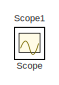
[diagram: root canvas - part 1/3, top left region]
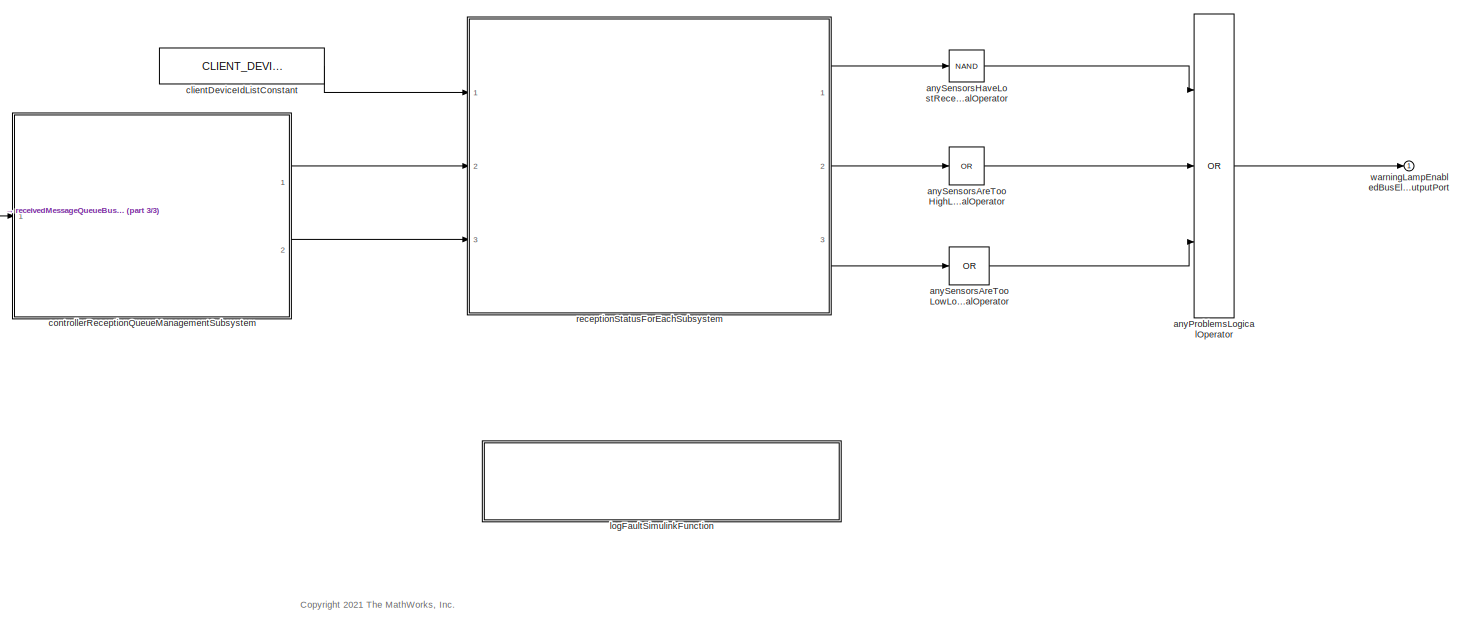
[diagram: root canvas - part 2/3, bottom center region]
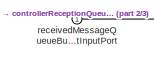
[diagram: root canvas - part 3/3, middle left region]
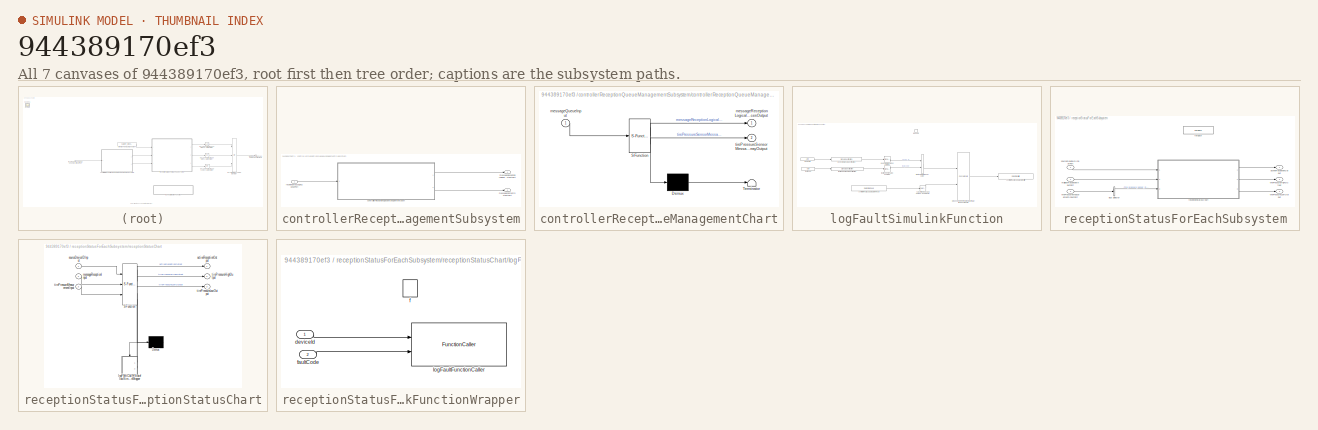
[diagram: thumbnail index - all 7 canvases of the model, root first then tree order]
MODEL slx_944389170ef3
KIND model
WORKSPACE source: MATLAB code (in-file) + mxarray member
WORKSPACE cmdLim = Simulink.Parameter
WORKSPACE code: cmdLim.Value = 15;
WORKSPACE code: cmdLim.Description = 'Limit for controlling the maximum surface command angle.';
WORKSPACE code: cmdLim.Min = 0;
WORKSPACE code: cmdLim.Max = 90;
WORKSPACE code: cmdLim.DocUnits = 'deg';
WORKSPACE dispGain = Simulink.Parameter
WORKSPACE code: dispGain.Value = 0.75;
WORKSPACE code: dispGain.Description = 'Gain applied to the displacement error.';
WORKSPACE code: dispGain.Min = 0;
WORKSPACE code: dispGain.Max = [];
WORKSPACE code: dispGain.DocUnits = 'deg/sec/deg';
WORKSPACE dispLim = Simulink.Parameter
WORKSPACE code: dispLim.Value = 30;
WORKSPACE code: dispLim.Description = 'Limit for controlling the maximum commanded angle.';
WORKSPACE code: dispLim.Min = 0;
WORKSPACE code: dispLim.Max = 180;
WORKSPACE code: dispLim.DocUnits = 'deg';
WORKSPACE intGain = Simulink.Parameter
WORKSPACE code: intGain.Value = 0.5;
WORKSPACE code: intGain.Description = 'Gain applied to the integral error.';
WORKSPACE code: intGain.Min = 0;
WORKSPACE code: intGain.Max = [];
WORKSPACE code: intGain.DocUnits = 'deg/sec/deg/sec';
WORKSPACE intLim = Simulink.Parameter
WORKSPACE code: intLim.Value = 5;
WORKSPACE code: intLim.Description = 'Limit for controlling the maximum commanded angle.';
WORKSPACE code: intLim.Min = 0;
WORKSPACE code: intLim.Max = 90;
WORKSPACE code: intLim.DocUnits = 'deg';
WORKSPACE rateGain = Simulink.Parameter
WORKSPACE code: rateGain.Value = 2;
WORKSPACE code: rateGain.Description = 'Gain applied to the rate error.';
WORKSPACE code: rateGain.Min = 0;
WORKSPACE code: rateGain.Max = [];
WORKSPACE code: rateGain.DocUnits = 'deg/deg/sec';
WORKSPACE rateLim = Simulink.Parameter
WORKSPACE code: rateLim.Value = 6;
WORKSPACE code: rateLim.Description = 'Limit for controlling the maximum commanded angle.';
WORKSPACE code: rateLim.Min = 0;
WORKSPACE code: rateLim.Max = 180;
WORKSPACE code: rateLim.DocUnits = 'deg/sec';
WORKSPACE hdgGain = Simulink.Parameter
WORKSPACE code: hdgGain.Value = 0.015;
WORKSPACE CLIENT_DEVICE_ID_LIST: Simulink.Parameter (value not decoded)
WORKSPACE CONTROLLER_SAMPLE_TIME = 0.01
WORKSPACE RECEPTION_LOSS_MESSAGE_INTERVAL = 2
WORKSPACE TIRE_PRESSURE_LOWER_THRESHOLD = 1.4
WORKSPACE TIRE_PRESSURE_UPPER_THRESHOLD = 4.6
BLOCK [Scope] Scope
  Floating = off
  IOType = viewer
  NumInputPorts = 1
  Ports = []
  ScopeSpecificationString = Simulink.scopes.TimeScopeBlockCfg('CurrentConfiguration', extmgr.ConfigurationSet(extmgr.Configuration('Core','General UI',true),extmgr.Configuration('Core','Source UI',true),extmgr.Configuration('Sources','WiredSimulink',true),extmgr.Configuration('Visuals','Time Domain',true),extmgr.Configuration('Tools','Plot Navigation',true),extmgr.Configuration('Tools','Measurements',true,'Version','2020b'))...<+19ch>
BLOCK [Scope] Scope1
  Floating = off
  IOType = viewer
  NumInputPorts = 1
  Ports = []
  ScopeSpecificationString = Simulink.scopes.TimeScopeBlockCfg('CurrentConfiguration', extmgr.ConfigurationSet(extmgr.Configuration('Core','General UI',true),extmgr.Configuration('Core','Source UI',true),extmgr.Configuration('Sources','WiredSimulink',true,'DataLoggingVariableName','ScopeData1'),extmgr.Configuration('Visuals','Time Domain',true),extmgr.Configuration('Tools','Plot Navigation',true),extmgr.Configuration('Tools',...<+58ch>
BLOCK [Logic] anyProblemsLogicalOperator
  AllPortsSameDT = off
  Inputs = 3
  Operator = OR
  OutDataTypeStr = boolean
  Ports = [3, 1]
BLOCK [Logic] anySensorsAreTooHighLogicalOperator
  AllPortsSameDT = off
  Inputs = 1
  Operator = OR
  OutDataTypeStr = boolean
  Ports = [1, 1]
BLOCK [Logic] anySensorsAreTooLowLogicalOperator
  AllPortsSameDT = off
  Inputs = 1
  Operator = OR
  OutDataTypeStr = boolean
  Ports = [1, 1]
BLOCK [Logic] anySensorsHaveLostReceptionLogicalOperator
  AllPortsSameDT = off
  Inputs = 1
  Operator = NAND
  OutDataTypeStr = boolean
  Ports = [1, 1]
BLOCK [Constant] clientDeviceIdListConstant
  OutDataTypeStr = Bus: DeviceIDBusType
  Value = CLIENT_DEVICE_ID_LIST
  VectorParams1D = off
BLOCK [SubSystem] controllerReceptionQueueManagementSubsystem
  Ports = [1, 2]
  RequestExecContextInheritance = off
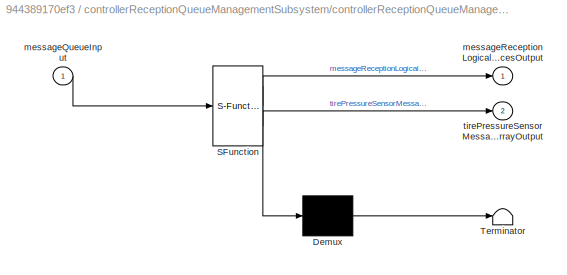
BLOCK [SubSystem] controllerReceptionQueueManagementSubsystem/controllerReceptionQueueManagementChart
  ErrorFcn = Stateflow.Translate.translate
  PermitHierarchicalResolution = ExplicitOnly
  Ports = [1, 2]
  RequestExecContextInheritance = off
  SFBlockType = Chart
  TreatAsAtomicUnit = on
BLOCK [Demux] controllerReceptionQueueManagementSubsystem/controllerReceptionQueueManagementChart/ Demux 
  Outputs = 1
  Ports = [1, 1]
BLOCK [S-Function] controllerReceptionQueueManagementSubsystem/controllerReceptionQueueManagementChart/ SFunction 
  EnableBusSupport = off
  FunctionName = sf_sfun
  Parameters = CLIENT_DEVICE_ID_LIST,DEFAULT_MEASUREMENT_MSG_BUS_TYPE,PER_STEP_MAXIMUM_MESSAGES_TO_PROCESS
  PortCounts = [1 3]
  Ports = [1, 3]
  SFcnIsStateOwnerBlock = off
  SFunctionDeploymentMode = off
  Tag = Stateflow S-Function 1
BLOCK [Terminator] controllerReceptionQueueManagementSubsystem/controllerReceptionQueueManagementChart/ Terminator 
BLOCK [Inport] controllerReceptionQueueManagementSubsystem/controllerReceptionQueueManagementChart/messageQueueInput
BLOCK [Outport] controllerReceptionQueueManagementSubsystem/controllerReceptionQueueManagementChart/messageReceptionLogicalIndicesOutput
BLOCK [Outport] controllerReceptionQueueManagementSubsystem/controllerReceptionQueueManagementChart/tirePressureSensorMessageArrayOutput
  Port = 2
BLOCK [Outport] controllerReceptionQueueManagementSubsystem/messageContentOutputPort
  Port = 2
BLOCK [Outport] controllerReceptionQueueManagementSubsystem/messageReceptionLogicalIndicesOutputPort
BLOCK [Inport] controllerReceptionQueueManagementSubsystem/receivedMessageQueuePort
BLOCK [SubSystem] logFaultSimulinkFunction
  Ports = [0, 0, 0, 1]
  RequestExecContextInheritance = off
  TreatAsAtomicUnit = on
BLOCK [DataStoreRead] logFaultSimulinkFunction/controllerFaultLogDataStoreRead
  DataStoreName = controller_fault_log
  IndexOptions = Index vector (dialog)
  Indices = 1
  OutputSizes = 1
  Ports = [0, 1]
BLOCK [DataStoreWrite] logFaultSimulinkFunction/controllerFaultLogDataStoreWrite
  DataStoreName = controller_fault_log
  IndexOptions = Index vector (dialog)
  Indices = 1
  OutputSizes = 1
  Ports = [1]
BLOCK [ArgIn] logFaultSimulinkFunction/deviceID
  ArgumentName = deviceID
  DisableCoverage = on
  OutDataTypeStr = Bus: DeviceIDBusType
BLOCK [SignalConversion] logFaultSimulinkFunction/deviceIDSignalConversion
  OverrideOpt = off
BLOCK [SignalSpecification] logFaultSimulinkFunction/deviceIDSignalSpecification
  BusOutputAsStruct = on
  OutDataTypeStr = Bus: DeviceIDBusType
BLOCK [ArgIn] logFaultSimulinkFunction/faultCode
  ArgumentName = faultCode
  DisableCoverage = on
  OutDataTypeStr = Enum: FaultCodeEnumType
  Port = 2
BLOCK [SignalConversion] logFaultSimulinkFunction/faultCodeSignalConversion
  OverrideOpt = off
BLOCK [SignalSpecification] logFaultSimulinkFunction/faultCodeSignalSpecification
  OutDataTypeStr = Enum: FaultCodeEnumType
BLOCK [BusCreator] logFaultSimulinkFunction/faultLogEntryBusCreator
  DisplayOption = bar
  InheritFromInputs = on
  Inputs = 2
  NonVirtualBus = on
  OutDataTypeStr = Bus: ControllerFaultLogEntryBusType
  Ports = [2, 1]
BLOCK [TriggerPort] logFaultSimulinkFunction/logFault
  FunctionName = logFault
  IsSimulinkFunction = on
  Ports = []
  StatesWhenEnabling = held
  TriggerType = function-call
  VariantControl = (inherit)
BLOCK [Concatenate] logFaultSimulinkFunction/prependNewestFaultLogEntryMatrixConcatenate
  Mode = Multidimensional array
  Ports = [2, 1]
BLOCK [Selector] logFaultSimulinkFunction/selectPreviousNewestFaultLogEntriesSelector
  IndexOptions = Index vector (dialog)
  Indices = [1: 9]
  InputPortWidth = 10
  OutputSizes = 1
  Ports = [1, 1]
BLOCK [Inport] receivedMessageQueueBusElementInputPort
BLOCK [SubSystem] receptionStatusForEachSubsystem
  Ports = [3, 3]
  RequestExecContextInheritance = off
  TreatAsAtomicUnit = on
BLOCK [BusSelector] receptionStatusForEachSubsystem/Bus Selector
  OutputSignals = tire_pressure_sensor_measurement
  Ports = [1, 1]
BLOCK [Outport] receptionStatusForEachSubsystem/activeReceptionOutput
  ConcatenationDimension = 1
BLOCK [ForEach] receptionStatusForEachSubsystem/forEach
  DisableCoverage = on
  Ports = []
BLOCK [Inport] receptionStatusForEachSubsystem/mailboxReceptionInputPort
  Partition = on
  PartitionDimension = 1
  PartitionOffset = 0
  PartitionWidth = 1
  Port = 2
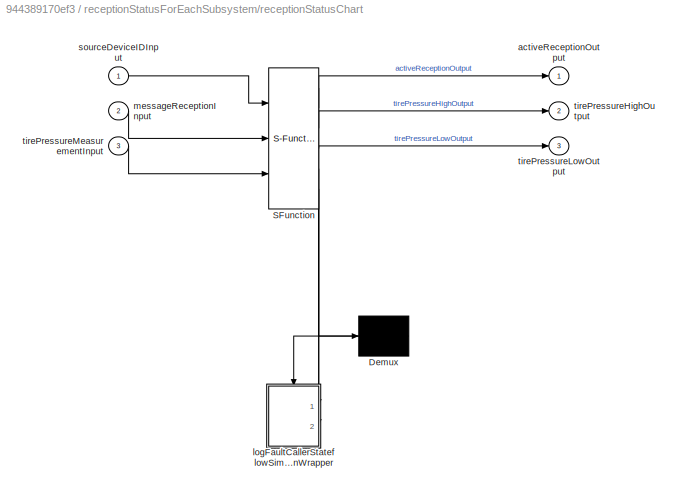
BLOCK [SubSystem] receptionStatusForEachSubsystem/receptionStatusChart
  ErrorFcn = Stateflow.Translate.translate
  PermitHierarchicalResolution = ExplicitOnly
  Ports = [3, 3]
  RTWSystemCode = Inline
  RequestExecContextInheritance = off
  SFBlockType = Chart
  TreatAsAtomicUnit = on
BLOCK [Demux] receptionStatusForEachSubsystem/receptionStatusChart/ Demux 
  Outputs = 1
  Ports = [1, 1]
BLOCK [S-Function] receptionStatusForEachSubsystem/receptionStatusChart/ SFunction 
  EnableBusSupport = off
  FunctionName = sf_sfun
  Parameters = RECEPTION_LOSS_MESSAGE_INTERVAL,TIRE_PRESSURE_LOWER_THRESHOLD,TIRE_PRESSURE_UPPER_THRESHOLD
  PortCounts = [3 6]
  Ports = [3, 6]
  SFcnIsStateOwnerBlock = off
  SFunctionDeploymentMode = off
  Tag = Stateflow S-Function 3
BLOCK [Outport] receptionStatusForEachSubsystem/receptionStatusChart/activeReceptionOutput
BLOCK [SubSystem] receptionStatusForEachSubsystem/receptionStatusChart/logFaultCallerStateflowSimulinkFunctionWrapper
  Ports = [2, 0, 0, 1]
  PreDeleteFcn = Stateflow.SLINSF.SimulinkMan.removePreDeleteFcn
  RTWSystemCode = Inline
  RequestExecContextInheritance = off
  UndoDeleteFcn = Stateflow.SLINSF.SimulinkMan.restorePreDeleteFcn
BLOCK [Inport] receptionStatusForEachSubsystem/receptionStatusChart/logFaultCallerStateflowSimulinkFunctionWrapper/deviceId
  LockScale = on
  OutDataTypeStr = Bus: DeviceIDBusType
  PortDimensions = 1
  SignalType = real
  VarSizeSig = No
BLOCK [TriggerPort] receptionStatusForEachSubsystem/receptionStatusChart/logFaultCallerStateflowSimulinkFunctionWrapper/f
  CopyFcn = Stateflow.SLINSF.SimulinkMan.removeBlockPreDeleteFcn
  Ports = []
  PreDeleteFcn = Stateflow.SLINSF.SimulinkMan.unsafePredeleteFcn
  StatesWhenEnabling = held
  TriggerType = function-call
  VariantControl = (inherit)
BLOCK [Inport] receptionStatusForEachSubsystem/receptionStatusChart/logFaultCallerStateflowSimulinkFunctionWrapper/faultCode
  OutDataTypeStr = Enum: FaultCodeEnumType
  Port = 2
  PortDimensions = 1
  SignalType = real
  VarSizeSig = No
BLOCK [FunctionCaller] receptionStatusForEachSubsystem/receptionStatusChart/logFaultCallerStateflowSimulinkFunctionWrapper/logFaultFunctionCaller
  FunctionPrototype = logFault(deviceID,faultCode)
  InputArgumentSpecifications = DEFAULT_DEVICE_ID, FaultCodeEnumType.getDefaultValue( )
  OutputArgumentSpecifications = <Enter example>
  Ports = [2]
BLOCK [Inport] receptionStatusForEachSubsystem/receptionStatusChart/messageReceptionInput
  Port = 2
BLOCK [Inport] receptionStatusForEachSubsystem/receptionStatusChart/sourceDeviceIDInput
BLOCK [Outport] receptionStatusForEachSubsystem/receptionStatusChart/tirePressureHighOutput
  Port = 2
BLOCK [Outport] receptionStatusForEachSubsystem/receptionStatusChart/tirePressureLowOutput
  Port = 3
BLOCK [Inport] receptionStatusForEachSubsystem/receptionStatusChart/tirePressureMeasurementInput
  Port = 3
BLOCK [Inport] receptionStatusForEachSubsystem/sourceDeviceIDInputPort
  Partition = on
  PartitionDimension = 1
  PartitionOffset = 0
  PartitionWidth = 1
BLOCK [Outport] receptionStatusForEachSubsystem/tirePressureHighOutput
  ConcatenationDimension = 1
  Port = 2
BLOCK [Outport] receptionStatusForEachSubsystem/tirePressureLowOutput
  ConcatenationDimension = 1
  Port = 3
BLOCK [Inport] receptionStatusForEachSubsystem/tirePressureMeasurementInputPort
  Partition = on
  PartitionDimension = 1
  PartitionOffset = 0
  PartitionWidth = 1
  Port = 3
BLOCK [Outport] warningLampEnabledBusElementOutputPort
ANNOTATION (root): <copyright redacted>
LINE anyProblemsLogicalOperator:1 -> warningLampEnabledBusElementOutputPort:1
LINE anySensorsAreTooHighLogicalOperator:1 -> anyProblemsLogicalOperator:2
LINE anySensorsAreTooLowLogicalOperator:1 -> anyProblemsLogicalOperator:3
LINE anySensorsHaveLostReceptionLogicalOperator:1 -> anyProblemsLogicalOperator:1
LINE clientDeviceIdListConstant:1 -> receptionStatusForEachSubsystem:1
LINE controllerReceptionQueueManagementSubsystem/controllerReceptionQueueManagementChart:1 -> controllerReceptionQueueManagementSubsystem/messageReceptionLogicalIndicesOutputPort:1
LINE controllerReceptionQueueManagementSubsystem/controllerReceptionQueueManagementChart:2 -> controllerReceptionQueueManagementSubsystem/messageContentOutputPort:1
LINE controllerReceptionQueueManagementSubsystem/receivedMessageQueuePort:1 -> controllerReceptionQueueManagementSubsystem/controllerReceptionQueueManagementChart:1
LINE controllerReceptionQueueManagementSubsystem:1 -> receptionStatusForEachSubsystem:2
LINE controllerReceptionQueueManagementSubsystem:2 -> receptionStatusForEachSubsystem:3
LINE logFaultSimulinkFunction/controllerFaultLogDataStoreRead:1 -> logFaultSimulinkFunction/selectPreviousNewestFaultLogEntriesSelector:1
LINE logFaultSimulinkFunction/deviceID:1 -> logFaultSimulinkFunction/deviceIDSignalSpecification:1
LINE logFaultSimulinkFunction/deviceIDSignalConversion:1 -> logFaultSimulinkFunction/faultLogEntryBusCreator:1
LINE logFaultSimulinkFunction/deviceIDSignalSpecification:1 -> logFaultSimulinkFunction/deviceIDSignalConversion:1
LINE logFaultSimulinkFunction/faultCode:1 -> logFaultSimulinkFunction/faultCodeSignalSpecification:1
LINE logFaultSimulinkFunction/faultCodeSignalConversion:1 -> logFaultSimulinkFunction/faultLogEntryBusCreator:2
LINE logFaultSimulinkFunction/faultCodeSignalSpecification:1 -> logFaultSimulinkFunction/faultCodeSignalConversion:1
LINE logFaultSimulinkFunction/faultLogEntryBusCreator:1 -> logFaultSimulinkFunction/prependNewestFaultLogEntryMatrixConcatenate:1
LINE logFaultSimulinkFunction/prependNewestFaultLogEntryMatrixConcatenate:1 -> logFaultSimulinkFunction/controllerFaultLogDataStoreWrite:1
LINE logFaultSimulinkFunction/selectPreviousNewestFaultLogEntriesSelector:1 -> logFaultSimulinkFunction/prependNewestFaultLogEntryMatrixConcatenate:2
LINE receivedMessageQueueBusElementInputPort:1 -> controllerReceptionQueueManagementSubsystem:1
LINE receptionStatusForEachSubsystem/Bus Selector:1 -> receptionStatusForEachSubsystem/receptionStatusChart:3
LINE receptionStatusForEachSubsystem/mailboxReceptionInputPort:1 -> receptionStatusForEachSubsystem/receptionStatusChart:2
LINE receptionStatusForEachSubsystem/receptionStatusChart:1 -> receptionStatusForEachSubsystem/activeReceptionOutput:1
LINE receptionStatusForEachSubsystem/receptionStatusChart:2 -> receptionStatusForEachSubsystem/tirePressureHighOutput:1
LINE receptionStatusForEachSubsystem/receptionStatusChart:3 -> receptionStatusForEachSubsystem/tirePressureLowOutput:1
LINE receptionStatusForEachSubsystem/sourceDeviceIDInputPort:1 -> receptionStatusForEachSubsystem/receptionStatusChart:1
LINE receptionStatusForEachSubsystem/tirePressureMeasurementInputPort:1 -> receptionStatusForEachSubsystem/Bus Selector:1
LINE receptionStatusForEachSubsystem:1 -> anySensorsHaveLostReceptionLogicalOperator:1
LINE receptionStatusForEachSubsystem:2 -> anySensorsAreTooHighLogicalOperator:1
LINE receptionStatusForEachSubsystem:3 -> anySensorsAreTooLowLogicalOperator:1
CHART receptionStatusForEachSubsystem/receptionStatusChart states=3 transitions=16
  STATE_LABEL 'logFaultCallerStateflowSimulinkFunctionWrapper( deviceId, faultCode )'
  STATE_LABEL 'RECEPTION_LOST\nentry:\nactiveReceptionOutput = false;\n'
  STATE_LABEL 'WAITING_FOR_RECEPTION\nentry:\nactiveReceptionOutput = true;\n'
CHART controllerReceptionQueueManagementSubsystem/controllerReceptionQueueManagementChart states=1 transitions=9
  STATE_LABEL '[ updatedMailboxes, updatedMailboxFlags ] = insert_message_in_mailbox( originalMailboxes, originalMailboxFlags, candidateMessage, mailboxDeviceIDList )'
  STATE_LABEL 'SCRIPT:\nfunction [ updatedMailboxes, updatedMailboxFlags ] = insert_message_in_mailbox( originalMailboxes, originalMailboxFlags, candidateMessage, mailboxDeviceIDList )\n\nassert( numel( mailboxDeviceIDList) == numel( originalMailboxes) );\n\nupdatedMailboxFlags = originalMailboxFlags;\nupdatedMailboxes = originalMailboxes;\n\ncurrentCandidateMessageDeviceID = candidateMessage.source.device_id;\n\nclientDe...<+599ch>'
CHART  states=0 transitions=0
CHART  states=0 transitions=0
